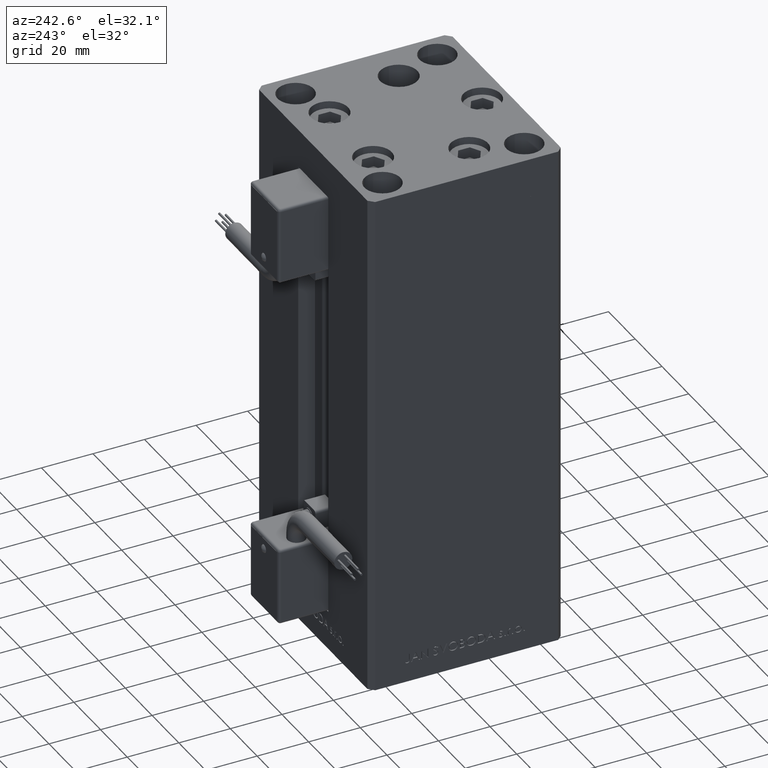
[diagram: clean part render]
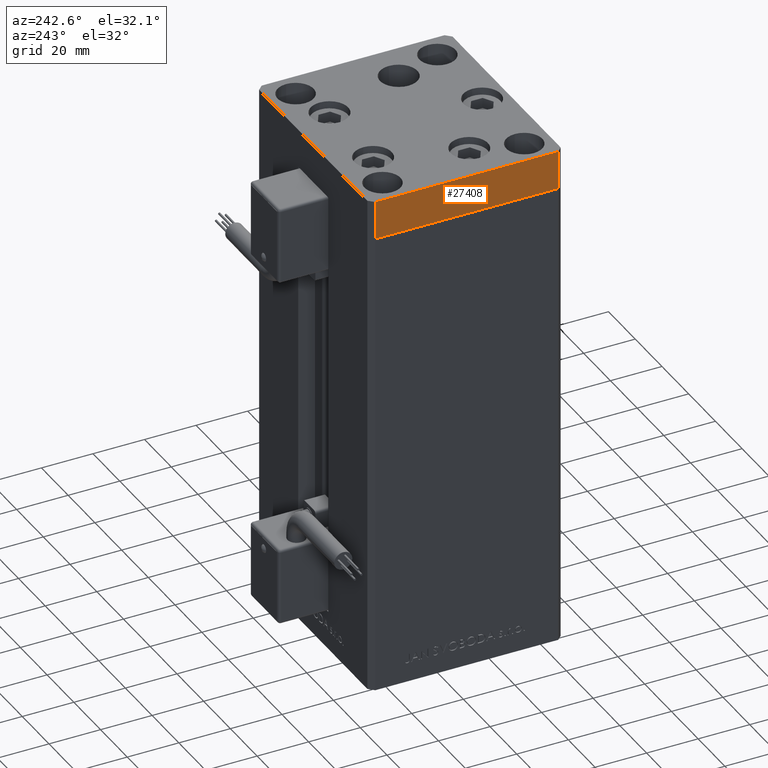
[diagram: same view with one face highlighted and labeled with its STEP entity id]
A machine part, auxiliary view. The second image highlights one B-rep face of the part: STEP entity #27408.
In plain terms, the highlighted planar face has unit normal (-1, -0, 0).
Its self-contained STEP definition (entity closure, byte-faithful):
#365 = ORIENTED_EDGE ( 'NONE', *, *, #47222, .T. ) ;
#430 = CARTESIAN_POINT ( 'NONE',  ( -42.50000000000000711, 35.49999999999997158, -15.00000000000000000 ) ) ;
#726 = VERTEX_POINT ( 'NONE', #40488 ) ;
#1661 = DIRECTION ( 'NONE',  ( 9.773090005503140331E-17, -1.000000000000000000, 0.000000000000000000 ) ) ;
#3884 = CARTESIAN_POINT ( 'NONE',  ( -42.50000000000000711, 35.49999999999997158, -15.00000000000000000 ) ) ;
#6082 = VECTOR ( 'NONE', #1661, 1000.000000000000000 ) ;
#6465 = LINE ( 'NONE', #41453, #13331 ) ;
#7840 = FACE_OUTER_BOUND ( 'NONE', #11805, .T. ) ;
#8488 = VECTOR ( 'NONE', #26966, 1000.000000000000000 ) ;
#9232 = VERTEX_POINT ( 'NONE', #30721 ) ;
#10397 = EDGE_CURVE ( 'NONE', #42266, #9232, #6465, .T. ) ;
#10927 = ORIENTED_EDGE ( 'NONE', *, *, #28123, .F. ) ;
#11028 = DIRECTION ( 'NONE',  ( -1.000000000000000000, -9.773090005503140331E-17, 0.000000000000000000 ) ) ;
#11805 = EDGE_LOOP ( 'NONE', ( #10927, #48472, #22983, #365 ) ) ;
#12970 = LINE ( 'NONE', #45018, #6082 ) ;
#13331 = VECTOR ( 'NONE', #30146, 1000.000000000000000 ) ;
#15218 = PLANE ( 'NONE',  #28963 ) ;
#17517 = VERTEX_POINT ( 'NONE', #36395 ) ;
#21342 = EDGE_CURVE ( 'NONE', #42266, #726, #12970, .T. ) ;
#22983 = ORIENTED_EDGE ( 'NONE', *, *, #21342, .T. ) ;
#25578 = CARTESIAN_POINT ( 'NONE',  ( -42.50000000000000711, 35.49999999999997158, 0.000000000000000000 ) ) ;
#25582 = VECTOR ( 'NONE', #25845, 1000.000000000000000 ) ;
#25845 = DIRECTION ( 'NONE',  ( 9.773090005503140331E-17, -1.000000000000000000, 0.000000000000000000 ) ) ;
#26102 = LINE ( 'NONE', #25578, #25582 ) ;
#26966 = DIRECTION ( 'NONE',  ( 0.000000000000000000, 0.000000000000000000, 1.000000000000000000 ) ) ;
#27408 = ADVANCED_FACE ( 'NONE', ( #7840 ), #15218, .T. ) ;
#28123 = EDGE_CURVE ( 'NONE', #9232, #17517, #26102, .T. ) ;
#28963 = AXIS2_PLACEMENT_3D ( 'NONE', #3884, #11028, #35207 ) ;
#30146 = DIRECTION ( 'NONE',  ( 0.000000000000000000, 0.000000000000000000, 1.000000000000000000 ) ) ;
#30721 = CARTESIAN_POINT ( 'NONE',  ( -42.50000000000000711, 35.49999999999997158, 0.000000000000000000 ) ) ;
#34091 = LINE ( 'NONE', #38037, #8488 ) ;
#35207 = DIRECTION ( 'NONE',  ( 9.773090005503140331E-17, -1.000000000000000000, 0.000000000000000000 ) ) ;
#36395 = CARTESIAN_POINT ( 'NONE',  ( -42.50000000000000000, -35.50000000000000711, 0.000000000000000000 ) ) ;
#38037 = CARTESIAN_POINT ( 'NONE',  ( -42.50000000000000000, -35.50000000000000711, -15.00000000000000000 ) ) ;
#40488 = CARTESIAN_POINT ( 'NONE',  ( -42.50000000000000000, -35.50000000000000711, -15.00000000000000000 ) ) ;
#41453 = CARTESIAN_POINT ( 'NONE',  ( -42.50000000000000711, 35.49999999999997158, -15.00000000000000000 ) ) ;
#42266 = VERTEX_POINT ( 'NONE', #430 ) ;
#45018 = CARTESIAN_POINT ( 'NONE',  ( -42.50000000000000711, 35.49999999999997158, -15.00000000000000000 ) ) ;
#47222 = EDGE_CURVE ( 'NONE', #726, #17517, #34091, .T. ) ;
#48472 = ORIENTED_EDGE ( 'NONE', *, *, #10397, .F. ) ;